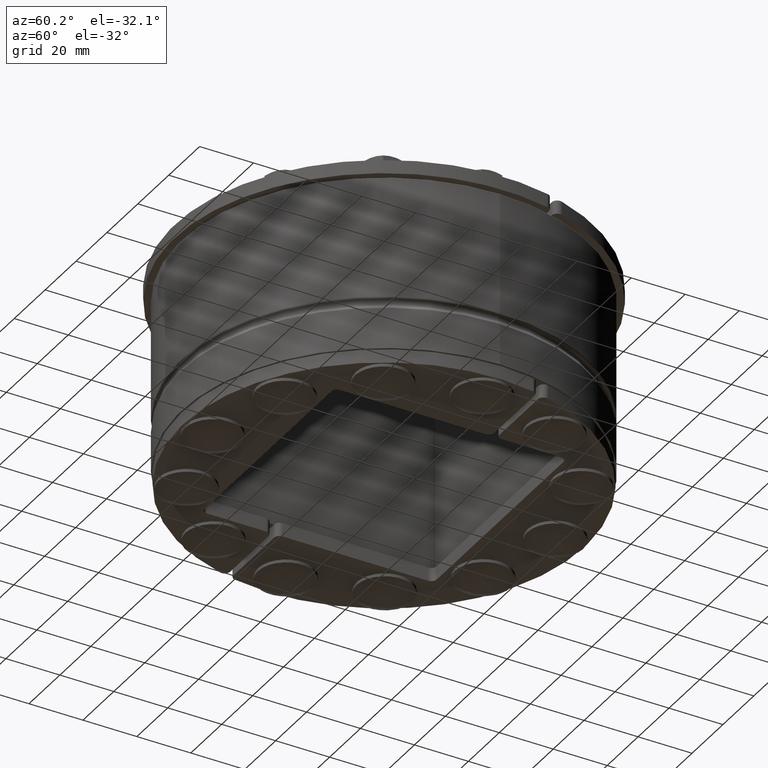
[diagram: clean part render]
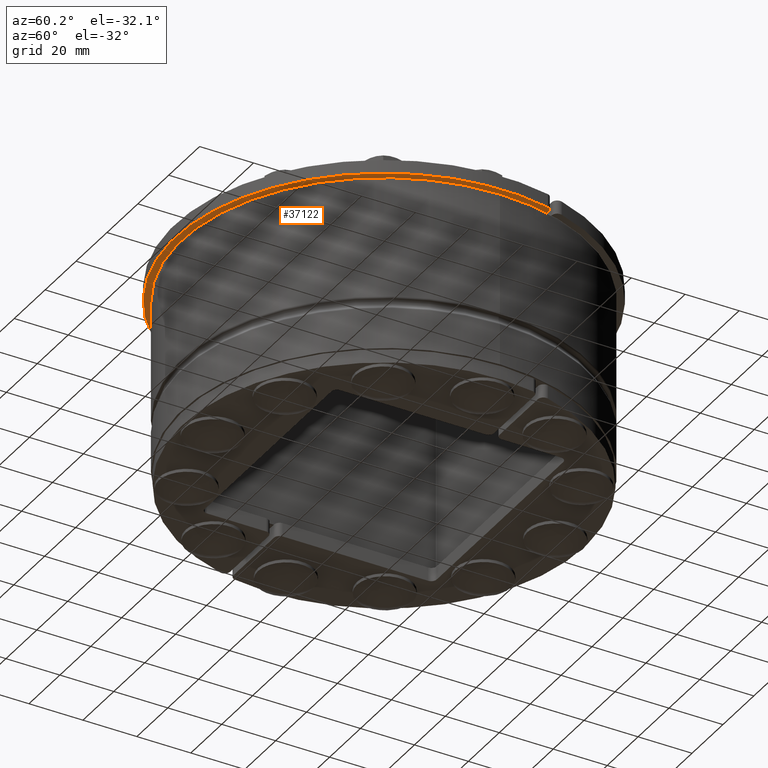
[diagram: same view with one face highlighted and labeled with its STEP entity id]
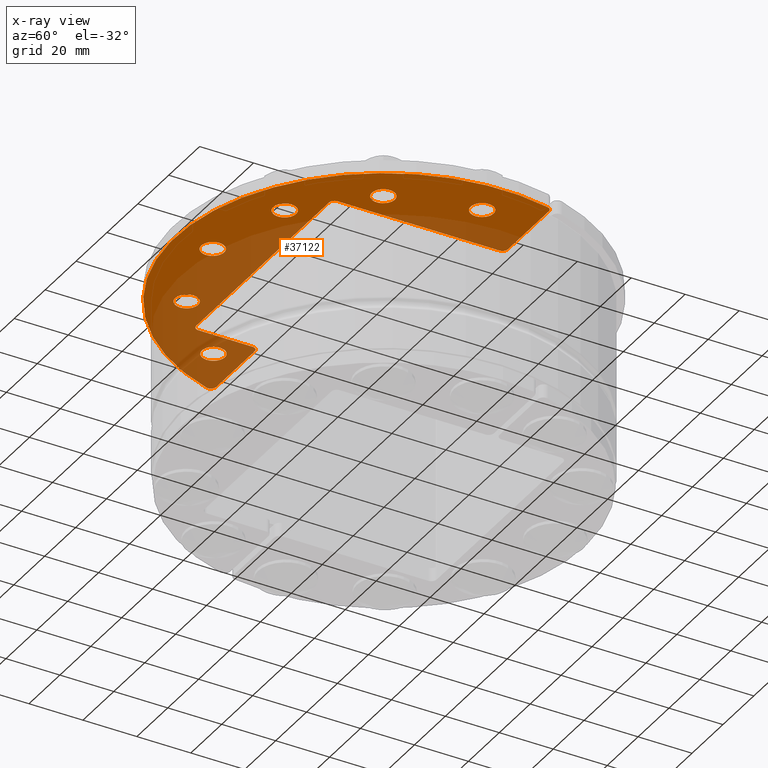
[diagram: x-ray of the same camera — body ghosted, the highlighted face saturated]
A machine part, auxiliary view. The second image highlights one B-rep face of the part: STEP entity #37122.
The next image is the same camera in x-ray: the body ghosted, the highlighted face saturated — about 42% of this face is hidden behind the body in this view.
In plain terms, the highlighted planar face has unit normal (0, 0, -1).
Its self-contained STEP definition (entity closure, byte-faithful):
#36509=CARTESIAN_POINT('',(36.000000000000043,-54.992613140311846,5.0));
#36510=VERTEX_POINT('',#36509);
#36511=CARTESIAN_POINT('',(31.750000000000039,-54.992613140311846,5.0));
#36512=DIRECTION('',(0.0,0.0,-1.0));
#36513=DIRECTION('',(-1.0,0.0,0.0));
#36514=AXIS2_PLACEMENT_3D('',#36511,#36512,#36513);
#36515=CIRCLE('',#36514,4.25);
#36516=EDGE_CURVE('',#36510,#36510,#36515,.T.);
#36537=CARTESIAN_POINT('',(4.250000000000016,-63.500000000000007,5.0));
#36538=VERTEX_POINT('',#36537);
#36539=CARTESIAN_POINT('',(1.555301E-014,-63.500000000000007,5.0));
#36540=DIRECTION('',(0.0,0.0,-1.0));
#36541=DIRECTION('',(-1.0,0.0,0.0));
#36542=AXIS2_PLACEMENT_3D('',#36539,#36540,#36541);
#36543=CIRCLE('',#36542,4.25);
#36544=EDGE_CURVE('',#36538,#36538,#36543,.T.);
#36565=CARTESIAN_POINT('',(-27.499999999999936,-54.992613140311889,5.0));
#36566=VERTEX_POINT('',#36565);
#36567=CARTESIAN_POINT('',(-31.74999999999994,-54.992613140311889,5.0));
#36568=DIRECTION('',(0.0,0.0,-1.0));
#36569=DIRECTION('',(-1.0,0.0,0.0));
#36570=AXIS2_PLACEMENT_3D('',#36567,#36568,#36569);
#36571=CIRCLE('',#36570,4.25);
#36572=EDGE_CURVE('',#36566,#36566,#36571,.T.);
#36593=CARTESIAN_POINT('',(-50.742613140311832,-31.750000000000028,5.0));
#36594=VERTEX_POINT('',#36593);
#36595=CARTESIAN_POINT('',(-54.992613140311832,-31.750000000000028,5.0));
#36596=DIRECTION('',(0.0,0.0,-1.0));
#36597=DIRECTION('',(-1.0,0.0,0.0));
#36598=AXIS2_PLACEMENT_3D('',#36595,#36596,#36597);
#36599=CIRCLE('',#36598,4.25);
#36600=EDGE_CURVE('',#36594,#36594,#36599,.T.);
#36621=CARTESIAN_POINT('',(-59.250000000000007,-3.367779E-015,5.0));
#36622=VERTEX_POINT('',#36621);
#36623=CARTESIAN_POINT('',(-63.500000000000007,-3.888254E-015,5.0));
#36624=DIRECTION('',(0.0,0.0,-1.0));
#36625=DIRECTION('',(-1.0,0.0,0.0));
#36626=AXIS2_PLACEMENT_3D('',#36623,#36624,#36625);
#36627=CIRCLE('',#36626,4.25);
#36628=EDGE_CURVE('',#36622,#36622,#36627,.T.);
#36649=CARTESIAN_POINT('',(59.242613140311889,-31.74999999999994,5.0));
#36650=VERTEX_POINT('',#36649);
#36651=CARTESIAN_POINT('',(54.992613140311889,-31.74999999999994,5.0));
#36652=DIRECTION('',(0.0,0.0,-1.0));
#36653=DIRECTION('',(-1.0,0.0,0.0));
#36654=AXIS2_PLACEMENT_3D('',#36651,#36652,#36653);
#36655=CIRCLE('',#36654,4.250000000000002);
#36656=EDGE_CURVE('',#36650,#36650,#36655,.T.);
#36666=CARTESIAN_POINT('',(-75.50984004485089,17.450331125827798,5.0));
#36667=VERTEX_POINT('',#36666);
#36668=CARTESIAN_POINT('',(-73.561199011435377,18.999999999999982,5.0));
#36669=VERTEX_POINT('',#36668);
#36670=CARTESIAN_POINT('',(-73.561199011435377,16.999999999999986,5.0));
#36671=DIRECTION('',(0.0,0.0,-1.0));
#36672=DIRECTION('',(-0.622428484681612,0.782676677470941,0.0));
#36673=AXIS2_PLACEMENT_3D('',#36670,#36671,#36672);
#36674=CIRCLE('',#36673,2.0);
#36675=EDGE_CURVE('',#36667,#36669,#36674,.T.);
#36718=CARTESIAN_POINT('',(73.81634167408204,-23.609271523178794,5.0));
#36719=VERTEX_POINT('',#36718);
#36726=CARTESIAN_POINT('',(0.0,0.0,5.0));
#36727=DIRECTION('',(0.0,0.0,-1.0));
#36728=DIRECTION('',(0.969482306041409,-0.24516129032258,0.0));
#36729=AXIS2_PLACEMENT_3D('',#36726,#36727,#36728);
#36730=CIRCLE('',#36729,77.5);
#36731=EDGE_CURVE('',#36719,#36667,#36730,.T.);
#36853=CARTESIAN_POINT('',(43.000000000000007,-45.0,5.0));
#36854=VERTEX_POINT('',#36853);
#36861=CARTESIAN_POINT('',(45.0,-43.0,5.0));
#36862=VERTEX_POINT('',#36861);
#36863=CARTESIAN_POINT('',(43.000000000000007,-43.0,5.0));
#36864=DIRECTION('',(0.0,0.0,1.0));
#36865=DIRECTION('',(0.707106781186544,-0.707106781186551,0.0));
#36866=AXIS2_PLACEMENT_3D('',#36863,#36864,#36865);
#36867=CIRCLE('',#36866,2.0);
#36868=EDGE_CURVE('',#36854,#36862,#36867,.T.);
#36886=CARTESIAN_POINT('',(-43.0,-45.0,5.0));
#36887=VERTEX_POINT('',#36886);
#36894=CARTESIAN_POINT('',(-43.0,-45.0,5.0));
#36895=DIRECTION('',(1.0,0.0,0.0));
#36896=VECTOR('',#36895,86.0);
#36897=LINE('',#36894,#36896);
#36898=EDGE_CURVE('',#36887,#36854,#36897,.T.);
#36908=CARTESIAN_POINT('',(44.999999999999993,-22.999999999999989,5.0));
#36909=VERTEX_POINT('',#36908);
#36910=CARTESIAN_POINT('',(46.999999999999993,-20.999999999999993,5.0));
#36911=VERTEX_POINT('',#36910);
#36912=CARTESIAN_POINT('',(46.999999999999993,-22.999999999999989,5.0));
#36913=DIRECTION('',(0.0,0.0,-1.0));
#36914=DIRECTION('',(-0.707106781186548,0.707106781186548,0.0));
#36915=AXIS2_PLACEMENT_3D('',#36912,#36913,#36914);
#36916=CIRCLE('',#36915,2.0);
#36917=EDGE_CURVE('',#36909,#36911,#36916,.T.);
#36941=CARTESIAN_POINT('',(45.0,-43.0,5.0));
#36942=DIRECTION('',(0.0,1.0,0.0));
#36943=VECTOR('',#36942,20.000000000000011);
#36944=LINE('',#36941,#36943);
#36945=EDGE_CURVE('',#36862,#36909,#36944,.T.);
#36957=CARTESIAN_POINT('',(-47.0,18.999999999999993,5.0));
#36958=VERTEX_POINT('',#36957);
#36959=CARTESIAN_POINT('',(-45.0,16.999999999999996,5.0));
#36960=VERTEX_POINT('',#36959);
#36961=CARTESIAN_POINT('',(-47.0,16.999999999999996,5.0));
#36962=DIRECTION('',(0.0,0.0,-1.0));
#36963=DIRECTION('',(0.70710678118655,0.707106781186545,0.0));
#36964=AXIS2_PLACEMENT_3D('',#36961,#36962,#36963);
#36965=CIRCLE('',#36964,2.0);
#36966=EDGE_CURVE('',#36958,#36960,#36965,.T.);
#36990=CARTESIAN_POINT('',(-73.561199011435377,18.999999999999982,5.0));
#36991=DIRECTION('',(1.0,0.0,0.0));
#36992=VECTOR('',#36991,26.561199011435377);
#36993=LINE('',#36990,#36992);
#36994=EDGE_CURVE('',#36669,#36958,#36993,.T.);
#37006=CARTESIAN_POINT('',(71.911403824428305,-20.999999999999982,5.0));
#37007=VERTEX_POINT('',#37006);
#37008=CARTESIAN_POINT('',(71.911403824428305,-22.999999999999986,5.0));
#37009=DIRECTION('',(0.0,0.0,-1.0));
#37010=DIRECTION('',(0.80766198424508,0.589645757387688,0.0));
#37011=AXIS2_PLACEMENT_3D('',#37008,#37009,#37010);
#37012=CIRCLE('',#37011,2.0);
#37013=EDGE_CURVE('',#37007,#36719,#37012,.T.);
#37032=CARTESIAN_POINT('',(-45.0,-43.0,5.0));
#37033=VERTEX_POINT('',#37032);
#37040=CARTESIAN_POINT('',(-43.0,-43.0,5.0));
#37041=DIRECTION('',(0.0,0.0,1.0));
#37042=DIRECTION('',(-0.707106781186548,-0.707106781186548,0.0));
#37043=AXIS2_PLACEMENT_3D('',#37040,#37041,#37042);
#37044=CIRCLE('',#37043,2.0);
#37045=EDGE_CURVE('',#37033,#36887,#37044,.T.);
#37057=CARTESIAN_POINT('',(-45.0,16.999999999999993,5.0));
#37058=DIRECTION('',(0.0,-1.0,0.0));
#37059=VECTOR('',#37058,59.999999999999993);
#37060=LINE('',#37057,#37059);
#37061=EDGE_CURVE('',#36960,#37033,#37060,.T.);
#37074=CARTESIAN_POINT('',(46.999999999999993,-20.999999999999993,5.0));
#37075=DIRECTION('',(1.0,0.0,0.0));
#37076=VECTOR('',#37075,24.911403824428312);
#37077=LINE('',#37074,#37076);
#37078=EDGE_CURVE('',#36911,#37007,#37077,.T.);
#37085=CARTESIAN_POINT('',(-9.686592045945396,-33.829671611197895,5.0));
#37086=DIRECTION('',(0.0,0.0,1.0));
#37087=DIRECTION('',(1.0,0.0,0.0));
#37088=AXIS2_PLACEMENT_3D('',#37085,#37086,#37087);
#37089=PLANE('',#37088);
#37090=ORIENTED_EDGE('',*,*,#36675,.F.);
#37091=ORIENTED_EDGE('',*,*,#36731,.F.);
#37092=ORIENTED_EDGE('',*,*,#37013,.F.);
#37093=ORIENTED_EDGE('',*,*,#37078,.F.);
#37094=ORIENTED_EDGE('',*,*,#36917,.F.);
#37095=ORIENTED_EDGE('',*,*,#36945,.F.);
#37096=ORIENTED_EDGE('',*,*,#36868,.F.);
#37097=ORIENTED_EDGE('',*,*,#36898,.F.);
#37098=ORIENTED_EDGE('',*,*,#37045,.F.);
#37099=ORIENTED_EDGE('',*,*,#37061,.F.);
#37100=ORIENTED_EDGE('',*,*,#36966,.F.);
#37101=ORIENTED_EDGE('',*,*,#36994,.F.);
#37102=EDGE_LOOP('',(#37090,#37091,#37092,#37093,#37094,#37095,#37096,#37097,#37098,#37099,#37100,#37101));
#37103=FACE_OUTER_BOUND('',#37102,.T.);
#37104=ORIENTED_EDGE('',*,*,#36516,.T.);
#37105=EDGE_LOOP('',(#37104));
#37106=FACE_BOUND('',#37105,.T.);
#37107=ORIENTED_EDGE('',*,*,#36544,.T.);
#37108=EDGE_LOOP('',(#37107));
#37109=FACE_BOUND('',#37108,.T.);
#37110=ORIENTED_EDGE('',*,*,#36572,.T.);
#37111=EDGE_LOOP('',(#37110));
#37112=FACE_BOUND('',#37111,.T.);
#37113=ORIENTED_EDGE('',*,*,#36600,.T.);
#37114=EDGE_LOOP('',(#37113));
#37115=FACE_BOUND('',#37114,.T.);
#37116=ORIENTED_EDGE('',*,*,#36628,.T.);
#37117=EDGE_LOOP('',(#37116));
#37118=FACE_BOUND('',#37117,.T.);
#37119=ORIENTED_EDGE('',*,*,#36656,.T.);
#37120=EDGE_LOOP('',(#37119));
#37121=FACE_BOUND('',#37120,.T.);
#37122=ADVANCED_FACE('',(#37103,#37106,#37109,#37112,#37115,#37118,#37121),#37089,.T.);